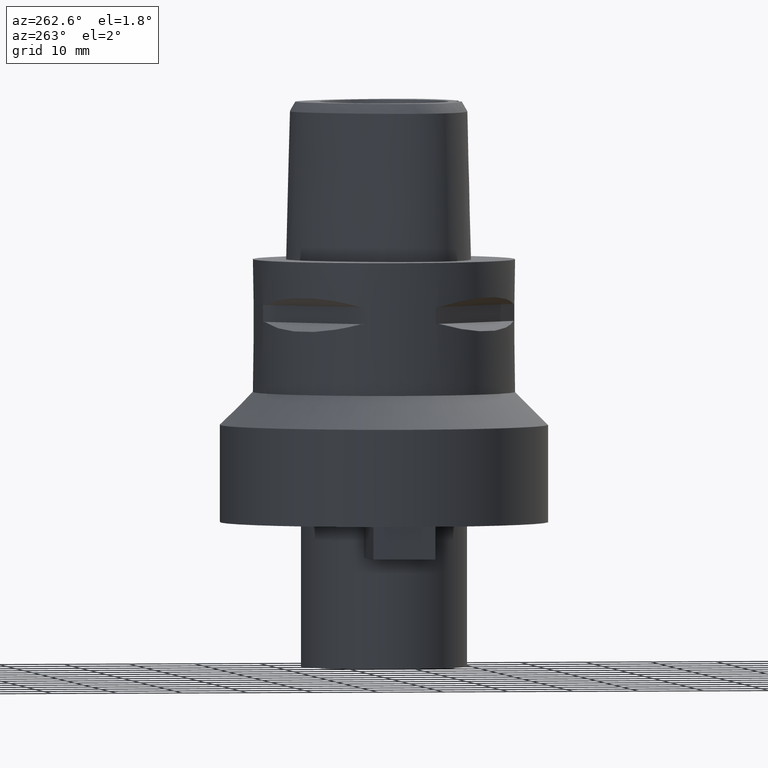
[diagram: clean part render]
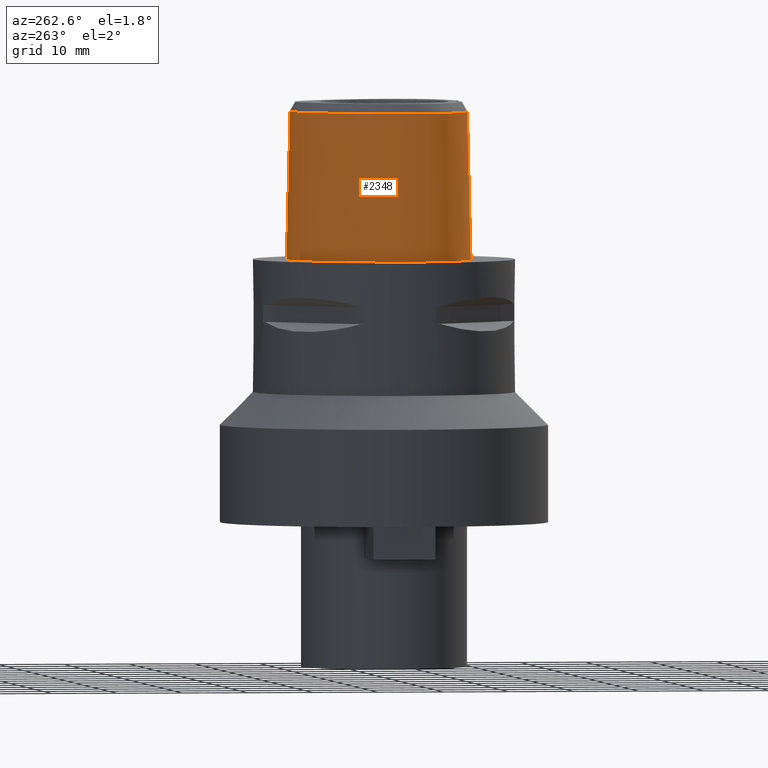
[diagram: same view with one face highlighted and labeled with its STEP entity id]
A machine part, auxiliary view. The second image highlights one B-rep face of the part: STEP entity #2348.
In plain terms, the highlighted face is a freeform B-spline surface patch.
Its self-contained STEP definition (entity closure, byte-faithful):
#185=CARTESIAN_POINT('',(-2.568703252653E0,-1.245023756080E1,2.252071717950E1));
#186=CARTESIAN_POINT('',(-3.140767362064E0,-1.238285874835E1,2.252069809700E1));
#187=CARTESIAN_POINT('',(-4.231432350381E0,-1.220749118666E1,2.252075047915E1));
#188=CARTESIAN_POINT('',(-5.680401477738E0,-1.185356079189E1,2.252068346086E1));
#189=CARTESIAN_POINT('',(-6.912706729050E0,-1.145002392145E1,2.252072846215E1));
#190=CARTESIAN_POINT('',(-8.014444282615E0,-1.099423288898E1,2.252071904811E1));
#191=CARTESIAN_POINT('',(-9.018405144946E0,-1.048012557420E1,2.252071402547E1));
#192=CARTESIAN_POINT('',(-9.929151451424E0,-9.906337477002E0,2.252072194140E1));
#193=CARTESIAN_POINT('',(-1.070776393210E1,-9.304676928897E0,2.252071466012E1));
#194=CARTESIAN_POINT('',(-1.135814414685E1,-8.692024244349E0,2.252072649171E1));
#195=CARTESIAN_POINT('',(-1.190098337376E1,-8.066523440665E0,2.252071260322E1));
#196=CARTESIAN_POINT('',(-1.234667877880E1,-7.432105773747E0,2.252076625818E1));
#197=CARTESIAN_POINT('',(-1.271526241775E1,-6.769205394506E0,2.252072475515E1));
#198=CARTESIAN_POINT('',(-1.302516400355E1,-6.043193140644E0,2.252071273254E1));
#199=CARTESIAN_POINT('',(-1.327656964214E1,-5.234323751474E0,2.252071347282E1));
#200=CARTESIAN_POINT('',(-1.346054735624E1,-4.335879622322E0,2.252072965067E1));
#201=CARTESIAN_POINT('',(-1.356670738777E1,-3.325787118150E0,2.252071333962E1));
#202=CARTESIAN_POINT('',(-1.357833085045E1,-2.232102726738E0,2.252072310686E1));
#203=CARTESIAN_POINT('',(-1.349159664572E1,-1.088567970740E0,2.252070848754E1));
#204=CARTESIAN_POINT('',(-1.330380166341E1,1.120053897956E-1,2.252073059496E1));
#205=CARTESIAN_POINT('',(-1.300051046427E1,1.410194195177E0,2.252072244837E1));
#206=CARTESIAN_POINT('',(-1.252747872946E1,2.900839187196E0,2.252070273689E1));
#207=CARTESIAN_POINT('',(-1.187832536623E1,4.481041021115E0,2.252069888392E1));
#208=CARTESIAN_POINT('',(-1.108347172856E1,6.045259994258E0,2.252072375172E1));
#209=CARTESIAN_POINT('',(-1.016193108695E1,7.549741679123E0,2.252068647014E1));
#210=CARTESIAN_POINT('',(-9.144943296323E0,8.946575283709E0,2.252071673861E1));
#211=CARTESIAN_POINT('',(-8.081042420031E0,1.018103728568E1,2.252072151124E1));
#212=CARTESIAN_POINT('',(-7.077911845281E0,1.117209775440E1,2.252070220860E1));
#213=CARTESIAN_POINT('',(-6.128371495495E0,1.197957250549E1,2.252072281274E1));
#214=CARTESIAN_POINT('',(-5.175347433608E0,1.267004432638E1,2.252072151735E1));
#215=CARTESIAN_POINT('',(-4.221915802100E0,1.324476235602E1,2.252072283038E1));
#216=CARTESIAN_POINT('',(-3.286911294798E0,1.369826143421E1,2.252073193036E1));
#217=CARTESIAN_POINT('',(-2.395439664103E0,1.402886899447E1,2.252069729837E1));
#218=CARTESIAN_POINT('',(-1.555977357370E0,1.424902387042E1,2.252079950042E1));
#219=CARTESIAN_POINT('',(-7.552256815651E-1,1.437387551916E1,2.252057493327E1));
#220=CARTESIAN_POINT('',(-2.533298763088E-1,1.440001989798E1,2.252071729253E1));
#221=CARTESIAN_POINT('',(-6.596689358390E-11,1.440001989798E1,
2.252071729253E1));
#233=CARTESIAN_POINT('',(-2.568703252653E0,-1.245023756080E1,2.252071717950E1));
#234=CARTESIAN_POINT('',(-2.572674924364E0,-1.245682053496E1,2.224060892344E1));
#235=CARTESIAN_POINT('',(-2.580500197758E0,-1.246990371487E1,2.168040813609E1));
#236=CARTESIAN_POINT('',(-2.592118967796E0,-1.248967246205E1,2.084016938552E1));
#237=CARTESIAN_POINT('',(-2.599807054793E0,-1.250297763434E1,2.028005099199E1));
#238=CARTESIAN_POINT('',(-2.603585510291E0,-1.250957803844E1,2.E1));
#243=DIRECTION('',(2.032296110192E-9,-2.499345181708E-2,-9.996876148909E-1));
#244=VECTOR('',#243,6.201937356338E0);
#245=CARTESIAN_POINT('',(-1.260417588443E-8,-1.266301535847E1,
1.999999996346E1));
#246=LINE('',#245,#244);
#250=CARTESIAN_POINT('',(0.E0,-1.281802318096E1,1.38E1));
#251=CARTESIAN_POINT('',(-2.008478477566E-1,-1.281802318096E1,1.38E1));
#252=CARTESIAN_POINT('',(-6.024553763522E-1,-1.281382882465E1,
1.374705985447E1));
#253=CARTESIAN_POINT('',(-1.163429615316E0,-1.279704456013E1,1.351464013277E1));
#254=CARTESIAN_POINT('',(-1.645336971799E0,-1.277533218485E1,1.314465779310E1));
#255=CARTESIAN_POINT('',(-2.013967812552E0,-1.275639478998E1,1.266413049426E1));
#256=CARTESIAN_POINT('',(-2.246382668353E0,-1.274762524972E1,1.210498211013E1));
#257=CARTESIAN_POINT('',(-2.326388680846E0,-1.275433282457E1,1.150212723126E1));
#258=CARTESIAN_POINT('',(-2.248055054956E0,-1.277771523091E1,1.090094749719E1));
#259=CARTESIAN_POINT('',(-2.015197600887E0,-1.281469707907E1,1.033745457635E1));
#260=CARTESIAN_POINT('',(-1.646432556705E0,-1.285768641891E1,9.856388081422E0));
#261=CARTESIAN_POINT('',(-1.163267591629E0,-1.289793443151E1,9.485045199570E0));
#262=CARTESIAN_POINT('',(-6.009132259882E-1,-1.292625949384E1,
9.252520821590E0));
#263=CARTESIAN_POINT('',(-2.001174781724E-1,-1.293301545397E1,9.2E0));
#264=CARTESIAN_POINT('',(-2.734603238015E-14,-1.293301545397E1,9.2E0));
#269=DIRECTION('',(-1.239537034989E-14,-2.499051295425E-2,-9.996876883619E-1));
#270=VECTOR('',#269,9.202874164706E0);
#271=CARTESIAN_POINT('',(-2.734603238015E-14,-1.293301545397E1,9.2E0));
#272=LINE('',#271,#270);
#334=CARTESIAN_POINT('',(1.391144292858E-10,1.496299999996E1,
2.762604959609E-13));
#335=CARTESIAN_POINT('',(-2.632869174399E-1,1.496299999997E1,
2.762604959609E-13));
#336=CARTESIAN_POINT('',(-8.012301166306E-1,1.493575686760E1,
-1.282129423742E-13));
#337=CARTESIAN_POINT('',(-1.639115550332E0,1.480706939631E1,
3.435455436839E-14));
#338=CARTESIAN_POINT('',(-2.517424899612E0,1.458099150809E1,0.E0));
#339=CARTESIAN_POINT('',(-3.440292918911E0,1.424492987536E1,0.E0));
#340=CARTESIAN_POINT('',(-4.411338427249E0,1.378338856944E1,0.E0));
#341=CARTESIAN_POINT('',(-5.430720852015E0,1.317883551149E1,0.E0));
#342=CARTESIAN_POINT('',(-6.493401502253E0,1.241377478725E1,0.E0));
#343=CARTESIAN_POINT('',(-7.587259165568E0,1.147372989745E1,0.E0));
#344=CARTESIAN_POINT('',(-8.690227952425E0,1.035304958166E1,0.E0));
#345=CARTESIAN_POINT('',(-9.771534030577E0,9.058839914351E0,0.E0));
#346=CARTESIAN_POINT('',(-1.079180536569E1,7.617702272622E0,0.E0));
#347=CARTESIAN_POINT('',(-1.171149132794E1,6.072659555441E0,0.E0));
#348=CARTESIAN_POINT('',(-1.249928934510E1,4.474001298056E0,0.E0));
#349=CARTESIAN_POINT('',(-1.313365018035E1,2.877769222519E0,0.E0));
#350=CARTESIAN_POINT('',(-1.360643596548E1,1.335305351919E0,0.E0));
#351=CARTESIAN_POINT('',(-1.392326495926E1,-1.174330614765E-1,0.E0));
#352=CARTESIAN_POINT('',(-1.409830923118E1,-1.459538082212E0,0.E0));
#353=CARTESIAN_POINT('',(-1.414973812500E1,-2.684314815266E0,0.E0));
#354=CARTESIAN_POINT('',(-1.409574130750E1,-3.793426050580E0,0.E0));
#355=CARTESIAN_POINT('',(-1.395239351955E1,-4.794753560639E0,0.E0));
#356=CARTESIAN_POINT('',(-1.373274041226E1,-5.698616955796E0,0.E0));
#357=CARTESIAN_POINT('',(-1.344520084497E1,-6.517582134972E0,0.E0));
#358=CARTESIAN_POINT('',(-1.309952294165E1,-7.255337542811E0,0.E0));
#359=CARTESIAN_POINT('',(-1.268803331033E1,-7.940552927097E0,0.E0));
#360=CARTESIAN_POINT('',(-1.219178629847E1,-8.603778778112E0,0.E0));
#361=CARTESIAN_POINT('',(-1.159138868580E1,-9.257930573855E0,0.E0));
#362=CARTESIAN_POINT('',(-1.087993822E1,-9.894408151556E0,0.E0));
#363=CARTESIAN_POINT('',(-1.004034866052E1,-1.051245488556E1,0.E0));
#364=CARTESIAN_POINT('',(-9.057704064923E0,-1.110407893284E1,0.E0));
#365=CARTESIAN_POINT('',(-7.917851957660E0,-1.165791283585E1,0.E0));
#366=CARTESIAN_POINT('',(-6.612137065866E0,-1.215756009229E1,0.E0));
#367=CARTESIAN_POINT('',(-5.141282207616E0,-1.258236192049E1,0.E0));
#368=CARTESIAN_POINT('',(-3.523053252034E0,-1.290918486431E1,
3.428322207198E-14));
#369=CARTESIAN_POINT('',(-1.787406014199E0,-1.311584559498E1,
-1.279467266198E-13));
#370=CARTESIAN_POINT('',(-6.031673367808E-1,-1.3163E1,2.756868807315E-13));
#371=CARTESIAN_POINT('',(-1.414190659351E-13,-1.3163E1,2.756868807315E-13));
#955=DIRECTION('',(9.103496612602E-12,2.499051293209E-2,-9.996876883624E-1));
#956=VECTOR('',#955,2.252775297195E1);
#957=CARTESIAN_POINT('',(-6.596689358390E-11,1.440001989798E1,
2.252071729253E1));
#958=LINE('',#957,#956);
#972=CARTESIAN_POINT('',(-1.260417588443E-8,-1.266301535847E1,
1.999999996346E1));
#973=CARTESIAN_POINT('',(-2.901067246510E-1,-1.266301535810E1,
1.999999996346E1));
#974=CARTESIAN_POINT('',(-8.697846637848E-1,-1.265187842880E1,
2.000000001705E1));
#975=CARTESIAN_POINT('',(-1.738500669180E0,-1.260061353130E1,1.999999999513E1));
#976=CARTESIAN_POINT('',(-2.315500031554E0,-1.254388777884E1,2.E1));
#977=CARTESIAN_POINT('',(-2.603585510291E0,-1.250957803844E1,2.E1));
#1593=CARTESIAN_POINT('',(-2.603602234121E0,-1.250961233014E1,2.E1));
#1594=VERTEX_POINT('',#1593);
#1595=VERTEX_POINT('',#233);
#1596=CARTESIAN_POINT('',(-6.596689358390E-11,1.440001989798E1,
2.252071729253E1));
#1597=VERTEX_POINT('',#1596);
#1598=VERTEX_POINT('',#334);
#1599=VERTEX_POINT('',#371);
#1600=VERTEX_POINT('',#972);
#1601=CARTESIAN_POINT('',(0.E0,-1.281802318096E1,1.38E1));
#1602=VERTEX_POINT('',#1601);
#1603=VERTEX_POINT('',#264);
#2235=CARTESIAN_POINT('',(4.604515496442E-1,1.496030144260E1,
-4.504151177298E-1));
#2236=CARTESIAN_POINT('',(4.485687439246E-1,1.476550229748E1,7.356780256253E0));
#2237=CARTESIAN_POINT('',(4.366859382049E-1,1.457070315236E1,1.516397563024E1));
#2238=CARTESIAN_POINT('',(4.248031324853E-1,1.437590400724E1,2.297117100422E1));
#2239=CARTESIAN_POINT('',(3.070131589057E-1,1.496964726244E1,
-4.504151177298E-1));
#2240=CARTESIAN_POINT('',(2.991395985822E-1,1.477459913795E1,7.356780256253E0));
#2241=CARTESIAN_POINT('',(2.912660382586E-1,1.457955101347E1,1.516397563024E1));
#2242=CARTESIAN_POINT('',(2.833924779350E-1,1.438450288898E1,2.297117100422E1));
#2243=CARTESIAN_POINT('',(-3.913005301134E-1,1.499062903544E1,
-4.504151177298E-1));
#2244=CARTESIAN_POINT('',(-3.811409391722E-1,1.479504118868E1,
7.356780256253E0));
#2245=CARTESIAN_POINT('',(-3.709813482311E-1,1.459945334191E1,
1.516397563024E1));
#2246=CARTESIAN_POINT('',(-3.608217572900E-1,1.440386549515E1,
2.297117100422E1));
#2247=CARTESIAN_POINT('',(-1.634303315365E0,1.485806843880E1,
-4.504151177298E-1));
#2248=CARTESIAN_POINT('',(-1.594059766501E0,1.466589049962E1,7.356780256253E0));
#2249=CARTESIAN_POINT('',(-1.553816217636E0,1.447371256043E1,1.516397563024E1));
#2250=CARTESIAN_POINT('',(-1.513572668772E0,1.428153462125E1,2.297117100422E1));
#2251=CARTESIAN_POINT('',(-3.786921844623E0,1.420422968376E1,
-4.504151177298E-1));
#2252=CARTESIAN_POINT('',(-3.702933683419E0,1.402580474856E1,7.356780256253E0));
#2253=CARTESIAN_POINT('',(-3.618945522216E0,1.384737981336E1,1.516397563024E1));
#2254=CARTESIAN_POINT('',(-3.534957361012E0,1.366895487816E1,2.297117100422E1));
#2255=CARTESIAN_POINT('',(-6.379661311384E0,1.267792013350E1,
-4.504151177298E-1));
#2256=CARTESIAN_POINT('',(-6.258002279598E0,1.252314198621E1,7.356780256253E0));
#2257=CARTESIAN_POINT('',(-6.136343247812E0,1.236836383893E1,1.516397563024E1));
#2258=CARTESIAN_POINT('',(-6.014684216026E0,1.221358569164E1,2.297117100422E1));
#2259=CARTESIAN_POINT('',(-9.179411188714E0,9.970937544591E0,
-4.504151177298E-1));
#2260=CARTESIAN_POINT('',(-9.029359538513E0,9.844403438346E0,7.356780256253E0));
#2261=CARTESIAN_POINT('',(-8.879307888313E0,9.717869332100E0,1.516397563024E1));
#2262=CARTESIAN_POINT('',(-8.729256238112E0,9.591335225855E0,2.297117100422E1));
#2263=CARTESIAN_POINT('',(-1.151281500898E1,6.646926446915E0,
-4.504151177298E-1));
#2264=CARTESIAN_POINT('',(-1.134294648301E1,6.548859700400E0,7.356780256253E0));
#2265=CARTESIAN_POINT('',(-1.117307795704E1,6.450792953885E0,1.516397563024E1));
#2266=CARTESIAN_POINT('',(-1.100320943107E1,6.352726207371E0,2.297117100422E1));
#2267=CARTESIAN_POINT('',(-1.322478982416E1,2.964135531788E0,
-4.504151177298E-1));
#2268=CARTESIAN_POINT('',(-1.304019929356E1,2.897436314142E0,7.356780256253E0));
#2269=CARTESIAN_POINT('',(-1.285560876297E1,2.830737096497E0,1.516397563024E1));
#2270=CARTESIAN_POINT('',(-1.267101823237E1,2.764037878851E0,2.297117100422E1));
#2271=CARTESIAN_POINT('',(-1.401182759363E1,-1.843230768376E-1,
-4.504151177298E-1));
#2272=CARTESIAN_POINT('',(-1.381861789354E1,-2.186980783184E-1,
7.356780256253E0));
#2273=CARTESIAN_POINT('',(-1.362540819344E1,-2.530730797992E-1,
1.516397563024E1));
#2274=CARTESIAN_POINT('',(-1.343219849335E1,-2.874480812801E-1,
2.297117100422E1));
#2275=CARTESIAN_POINT('',(-1.418449853324E1,-2.619126383711E0,
-4.504151177298E-1));
#2276=CARTESIAN_POINT('',(-1.398872603301E1,-2.620510732723E0,
7.356780256253E0));
#2277=CARTESIAN_POINT('',(-1.379295353278E1,-2.621895081735E0,
1.516397563024E1));
#2278=CARTESIAN_POINT('',(-1.359718103255E1,-2.623279430747E0,
2.297117100422E1));
#2279=CARTESIAN_POINT('',(-1.406716928660E1,-4.370330522217E0,
-4.504151177298E-1));
#2280=CARTESIAN_POINT('',(-1.387311584716E1,-4.342650428784E0,
7.356780256253E0));
#2281=CARTESIAN_POINT('',(-1.367906240773E1,-4.314970335350E0,
1.516397563024E1));
#2282=CARTESIAN_POINT('',(-1.348500896829E1,-4.287290241916E0,
2.297117100422E1));
#2283=CARTESIAN_POINT('',(-1.374837363788E1,-5.739794812615E0,
-4.504151177298E-1));
#2284=CARTESIAN_POINT('',(-1.356059776402E1,-5.684126914773E0,
7.356780256253E0));
#2285=CARTESIAN_POINT('',(-1.337282189015E1,-5.628459016930E0,
1.516397563024E1));
#2286=CARTESIAN_POINT('',(-1.318504601628E1,-5.572791119088E0,
2.297117100422E1));
#2287=CARTESIAN_POINT('',(-1.335152084542E1,-6.764911733940E0,
-4.504151177298E-1));
#2288=CARTESIAN_POINT('',(-1.317288122830E1,-6.685476053972E0,
7.356780256253E0));
#2289=CARTESIAN_POINT('',(-1.299424161118E1,-6.606040374003E0,
1.516397563024E1));
#2290=CARTESIAN_POINT('',(-1.281560199406E1,-6.526604694035E0,
2.297117100422E1));
#2291=CARTESIAN_POINT('',(-1.298066718138E1,-7.494391691444E0,
-4.504151177298E-1));
#2292=CARTESIAN_POINT('',(-1.281132629626E1,-7.396622685581E0,
7.356780256253E0));
#2293=CARTESIAN_POINT('',(-1.264198541115E1,-7.298853679718E0,
1.516397563024E1));
#2294=CARTESIAN_POINT('',(-1.247264452604E1,-7.201084673856E0,
2.297117100422E1));
#2295=CARTESIAN_POINT('',(-1.253434583876E1,-8.180300364318E0,
-4.504151177298E-1));
#2296=CARTESIAN_POINT('',(-1.237623271166E1,-8.065311757790E0,
7.356780256253E0));
#2297=CARTESIAN_POINT('',(-1.221811958456E1,-7.950323151262E0,
1.516397563024E1));
#2298=CARTESIAN_POINT('',(-1.206000645746E1,-7.835334544734E0,
2.297117100422E1));
#2299=CARTESIAN_POINT('',(-1.184499493863E1,-9.036543424798E0,
-4.504151177298E-1));
#2300=CARTESIAN_POINT('',(-1.170289719744E1,-8.901758697047E0,
7.356780256253E0));
#2301=CARTESIAN_POINT('',(-1.156079945625E1,-8.766973969296E0,
1.516397563024E1));
#2302=CARTESIAN_POINT('',(-1.141870171506E1,-8.632189241545E0,
2.297117100422E1));
#2303=CARTESIAN_POINT('',(-1.081840190289E1,-9.997360700596E0,
-4.504151177298E-1));
#2304=CARTESIAN_POINT('',(-1.069740344264E1,-9.843145536088E0,
7.356780256253E0));
#2305=CARTESIAN_POINT('',(-1.057640498238E1,-9.688930371580E0,
1.516397563024E1));
#2306=CARTESIAN_POINT('',(-1.045540652213E1,-9.534715207072E0,
2.297117100422E1));
#2307=CARTESIAN_POINT('',(-9.360479234529E0,-1.097457287724E1,
-4.504151177298E-1));
#2308=CARTESIAN_POINT('',(-9.263792144957E0,-1.080433675512E1,
7.356780256253E0));
#2309=CARTESIAN_POINT('',(-9.167105055386E0,-1.063410063300E1,
1.516397563024E1));
#2310=CARTESIAN_POINT('',(-9.070417965814E0,-1.046386451089E1,
2.297117100422E1));
#2311=CARTESIAN_POINT('',(-7.165542349234E0,-1.204243711446E1,
-4.504151177298E-1));
#2312=CARTESIAN_POINT('',(-7.098705643906E0,-1.185792504712E1,
7.356780256253E0));
#2313=CARTESIAN_POINT('',(-7.031868938578E0,-1.167341297978E1,
1.516397563024E1));
#2314=CARTESIAN_POINT('',(-6.965032233250E0,-1.148890091245E1,
2.297117100422E1));
#2315=CARTESIAN_POINT('',(-4.045377553442E0,-1.293507168634E1,
-4.504151177298E-1));
#2316=CARTESIAN_POINT('',(-4.010857427754E0,-1.274186245654E1,
7.356780256253E0));
#2317=CARTESIAN_POINT('',(-3.976337302067E0,-1.254865322674E1,
1.516397563024E1));
#2318=CARTESIAN_POINT('',(-3.941817176379E0,-1.235544399693E1,
2.297117100422E1));
#2319=CARTESIAN_POINT('',(-1.057767381820E0,-1.320004107520E1,
-4.504151177298E-1));
#2320=CARTESIAN_POINT('',(-1.048704673625E0,-1.300466330698E1,
7.356780256253E0));
#2321=CARTESIAN_POINT('',(-1.039641965429E0,-1.280928553876E1,
1.516397563024E1));
#2322=CARTESIAN_POINT('',(-1.030579257234E0,-1.261390777055E1,
2.297117100422E1));
#2323=CARTESIAN_POINT('',(5.813887769699E-1,-1.316870178781E1,
-4.504151177298E-1));
#2324=CARTESIAN_POINT('',(5.764111343369E-1,-1.297358050375E1,
7.356780256253E0));
#2325=CARTESIAN_POINT('',(5.714334917039E-1,-1.277845921968E1,
1.516397563024E1));
#2326=CARTESIAN_POINT('',(5.664558490710E-1,-1.258333793562E1,
2.297117100422E1));
#2327=CARTESIAN_POINT('',(8.715805125592E-1,-1.315757746456E1,
-4.504151177298E-1));
#2328=CARTESIAN_POINT('',(8.641029068710E-1,-1.296254443459E1,
7.356780256253E0));
#2329=CARTESIAN_POINT('',(8.566253011829E-1,-1.276751140462E1,
1.516397563024E1));
#2330=CARTESIAN_POINT('',(8.491476954947E-1,-1.257247837465E1,
2.297117100422E1));
#2331=B_SPLINE_SURFACE_WITH_KNOTS('',3,3,((#2235,#2236,#2237,#2238),(#2239,
#2240,#2241,#2242),(#2243,#2244,#2245,#2246),(#2247,#2248,#2249,#2250),(#2251,
#2252,#2253,#2254),(#2255,#2256,#2257,#2258),(#2259,#2260,#2261,#2262),(#2263,
#2264,#2265,#2266),(#2267,#2268,#2269,#2270),(#2271,#2272,#2273,#2274),(#2275,
#2276,#2277,#2278),(#2279,#2280,#2281,#2282),(#2283,#2284,#2285,#2286),(#2287,
#2288,#2289,#2290),(#2291,#2292,#2293,#2294),(#2295,#2296,#2297,#2298),(#2299,
#2300,#2301,#2302),(#2303,#2304,#2305,#2306),(#2307,#2308,#2309,#2310),(#2311,
#2312,#2313,#2314),(#2315,#2316,#2317,#2318),(#2319,#2320,#2321,#2322),(#2323,
#2324,#2325,#2326),(#2327,#2328,#2329,#2330)),.UNSPECIFIED.,.F.,.F.,.F.,(4,1,1,
1,1,1,1,1,1,1,1,1,1,1,1,1,1,1,1,1,1,4),(4,4),(-1.174028709087E-2,0.E0,
4.166666667008E-2,8.333333333659E-2,1.666666666697E-1,2.500000000027E-1,
3.333333333357E-1,4.166666666688E-1,5.000000000018E-1,5.416666666684E-1,
5.833333333348E-1,6.250000000014E-1,6.458333333346E-1,6.666666666680E-1,
6.875000000012E-1,7.083333333344E-1,7.500000000010E-1,7.916666666675E-1,
8.333333333340E-1,9.166666666671E-1,1.E0,1.017964572396E0),(-2.861868078630E-8,
1.000001459553E0),.UNSPECIFIED.);
#2333=ORIENTED_EDGE('',*,*,#2332,.F.);
#2335=ORIENTED_EDGE('',*,*,#2334,.F.);
#2336=ORIENTED_EDGE('',*,*,#2228,.F.);
#2337=ORIENTED_EDGE('',*,*,#1801,.T.);
#2339=ORIENTED_EDGE('',*,*,#2338,.F.);
#2341=ORIENTED_EDGE('',*,*,#2340,.T.);
#2343=ORIENTED_EDGE('',*,*,#2342,.T.);
#2345=ORIENTED_EDGE('',*,*,#2344,.T.);
#2346=EDGE_LOOP('',(#2333,#2335,#2336,#2337,#2339,#2341,#2343,#2345));
#2347=FACE_OUTER_BOUND('',#2346,.F.);
#222=B_SPLINE_CURVE_WITH_KNOTS('',3,(#185,#186,#187,#188,#189,#190,#191,#192,
#193,#194,#195,#196,#197,#198,#199,#200,#201,#202,#203,#204,#205,#206,#207,#208,
#209,#210,#211,#212,#213,#214,#215,#216,#217,#218,#219,#220,#221),.UNSPECIFIED.,
.F.,.F.,(4,1,1,1,1,1,1,1,1,1,1,1,1,1,1,1,1,1,1,1,1,1,1,1,1,1,1,1,1,1,1,1,1,1,4),
(0.E0,2.941176470588E-2,5.882352941176E-2,8.823529411765E-2,1.176470588235E-1,
1.470588235294E-1,1.764705882353E-1,2.058823529412E-1,2.352941176471E-1,
2.647058823529E-1,2.941176470588E-1,3.235294117647E-1,3.529411764706E-1,
3.823529411765E-1,4.117647058824E-1,4.411764705882E-1,4.705882352941E-1,5.E-1,
5.294117647059E-1,5.588235294118E-1,5.882352941176E-1,6.176470588235E-1,
6.470588235294E-1,6.764705882353E-1,7.058823529412E-1,7.352941176471E-1,
7.647058823529E-1,7.941176470588E-1,8.235294117647E-1,8.529411764706E-1,
8.823529411765E-1,9.117647058824E-1,9.411764705882E-1,9.705882352941E-1,1.E0),
.UNSPECIFIED.);
#239=B_SPLINE_CURVE_WITH_KNOTS('',3,(#233,#234,#235,#236,#237,#238),
.UNSPECIFIED.,.F.,.F.,(4,1,1,4),(0.E0,3.333333333333E-1,6.666666666667E-1,1.E0),
.UNSPECIFIED.);
#265=B_SPLINE_CURVE_WITH_KNOTS('',3,(#250,#251,#252,#253,#254,#255,#256,#257,
#258,#259,#260,#261,#262,#263,#264),.UNSPECIFIED.,.F.,.F.,(4,1,1,1,1,1,1,1,1,1,
1,1,4),(0.E0,8.333333333333E-2,1.666666666667E-1,2.5E-1,3.333333333333E-1,
4.166666666667E-1,5.E-1,5.833333333333E-1,6.666666666667E-1,7.5E-1,
8.333333333333E-1,9.166666666667E-1,1.E0),.UNSPECIFIED.);
#372=B_SPLINE_CURVE_WITH_KNOTS('',3,(#334,#335,#336,#337,#338,#339,#340,#341,
#342,#343,#344,#345,#346,#347,#348,#349,#350,#351,#352,#353,#354,#355,#356,#357,
#358,#359,#360,#361,#362,#363,#364,#365,#366,#367,#368,#369,#370,#371),
.UNSPECIFIED.,.F.,.F.,(4,1,1,1,1,1,1,1,1,1,1,1,1,1,1,1,1,1,1,1,1,1,1,1,1,1,1,1,
1,1,1,1,1,1,1,4),(0.E0,2.857142857143E-2,5.714285714286E-2,8.571428571429E-2,
1.142857142857E-1,1.428571428571E-1,1.714285714286E-1,2.E-1,2.285714285714E-1,
2.571428571429E-1,2.857142857143E-1,3.142857142857E-1,3.428571428571E-1,
3.714285714286E-1,4.E-1,4.285714285714E-1,4.571428571429E-1,4.857142857143E-1,
5.142857142857E-1,5.428571428571E-1,5.714285714286E-1,6.E-1,6.285714285714E-1,
6.571428571429E-1,6.857142857143E-1,7.142857142857E-1,7.428571428571E-1,
7.714285714286E-1,8.E-1,8.285714285714E-1,8.571428571429E-1,8.857142857143E-1,
9.142857142857E-1,9.428571428571E-1,9.714285714286E-1,1.E0),.UNSPECIFIED.);
#978=B_SPLINE_CURVE_WITH_KNOTS('',3,(#972,#973,#974,#975,#976,#977),
.UNSPECIFIED.,.F.,.F.,(4,1,1,4),(0.E0,3.333333333333E-1,6.666666666667E-1,1.E0),
.UNSPECIFIED.);
#1801=EDGE_CURVE('',#1595,#1594,#239,.T.);
#2228=EDGE_CURVE('',#1595,#1597,#222,.T.);
#2332=EDGE_CURVE('',#1598,#1599,#372,.T.);
#2334=EDGE_CURVE('',#1597,#1598,#958,.T.);
#2338=EDGE_CURVE('',#1600,#1594,#978,.T.);
#2340=EDGE_CURVE('',#1600,#1602,#246,.T.);
#2342=EDGE_CURVE('',#1602,#1603,#265,.T.);
#2344=EDGE_CURVE('',#1603,#1599,#272,.T.);
#2348=ADVANCED_FACE('',(#2347),#2331,.T.);